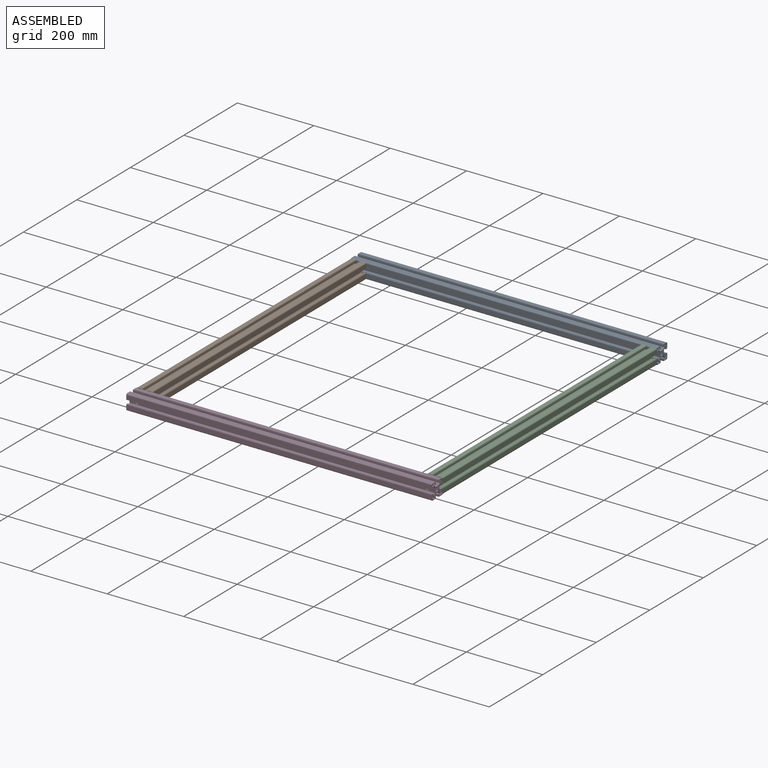
[diagram: assembled view]
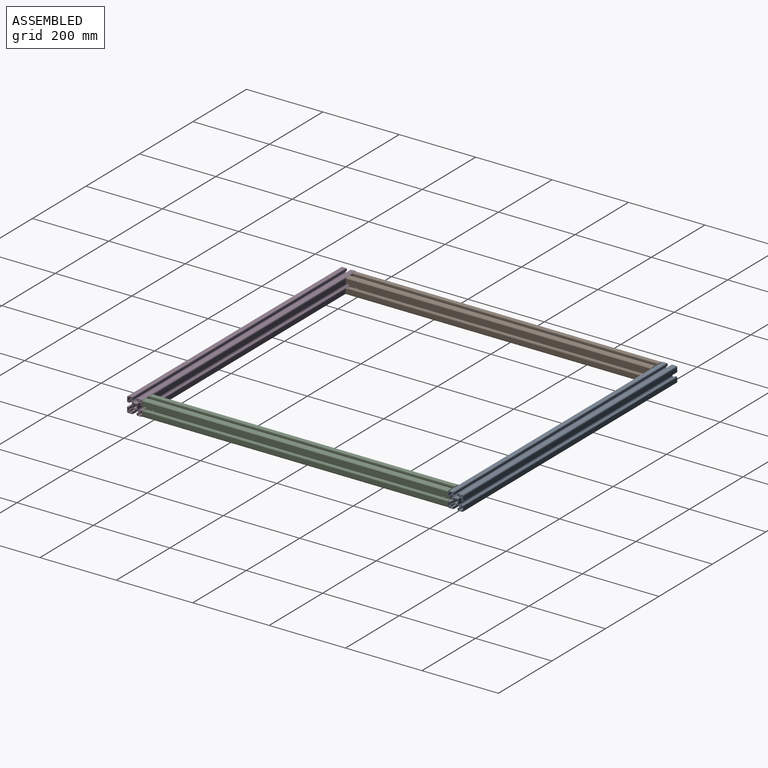
[diagram: assembled view, second angle]
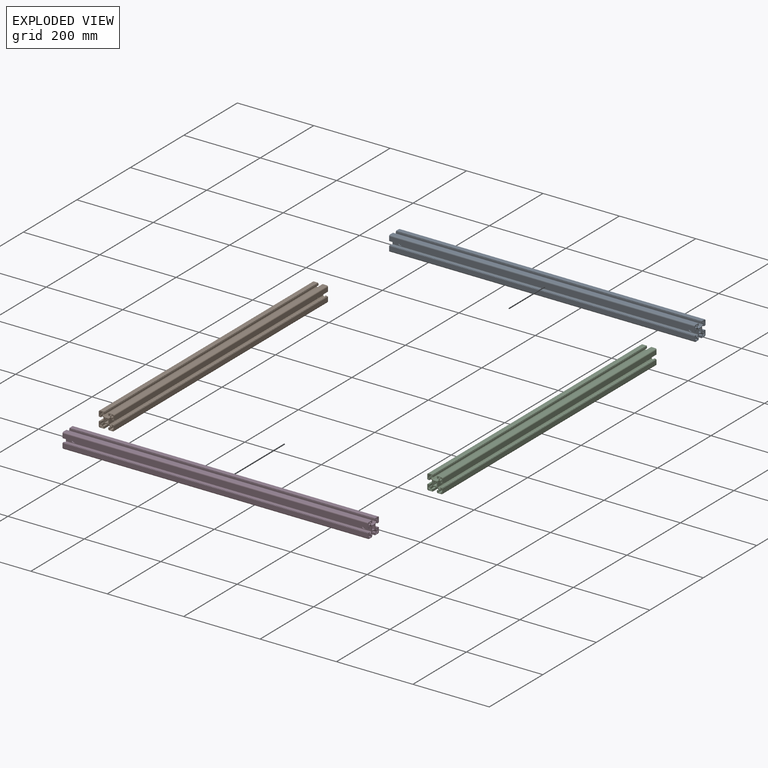
[diagram: exploded view]
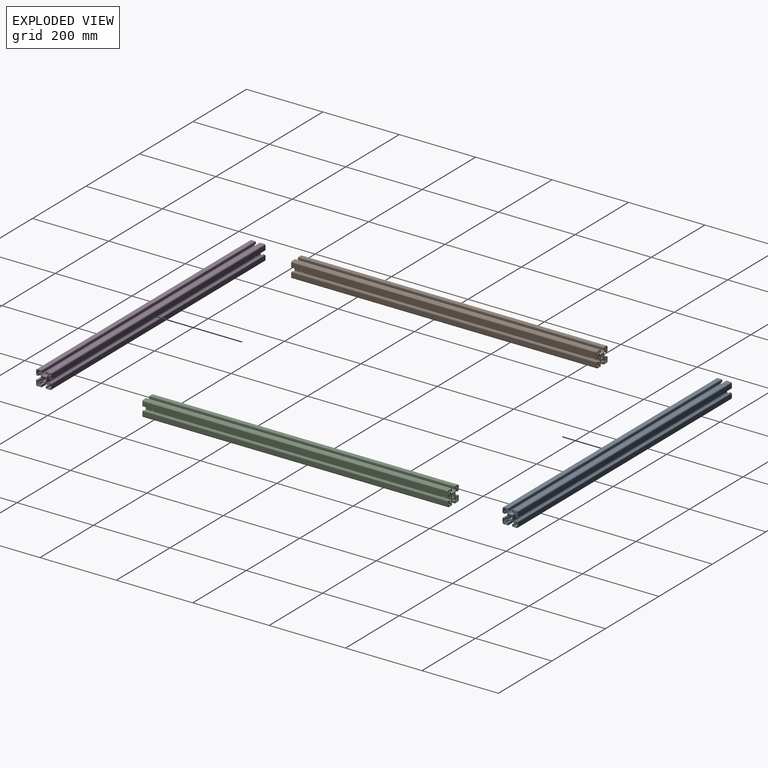
[diagram: exploded view, second angle]
ASSEMBLY  parts=4 mates=3
PART A: 166 faces, bbox 800x40x40 mm
  f0: cylinder r=5mm len=750.83mm, axis (-1,0,0), area 3077.3mm2, adj f7,f8,f162,f163
  f1: cylinder r=5mm len=15.41mm, axis (-1,0,0), area 62.1mm2, adj f6,f77,f156,f163
  f2: cylinder r=5mm len=15.41mm, axis (-1,0,0), area 62.1mm2, adj f9,f76,f157,f162
  f3: cylinder r=5mm len=750.83mm, axis (-1,0,0), area 3077.3mm2, adj f10,f13,f164,f165
  f4: cylinder r=5mm len=15.41mm, axis (-1,0,0), area 62.1mm2, adj f12,f84,f156,f165
  f5: cylinder r=5mm len=15.41mm, axis (-1,0,0), area 62.1mm2, adj f11,f85,f157,f164
  f6: plane 15.54x0.62mm, normal (0,-0.92,-0.4), area 10.4mm2, adj f1,f91,f156,f163
  f7: plane 751.09x0.62mm, normal (0,-0.92,-0.4), area 503.4mm2, adj f0,f91,f162,f163
  f8: plane 751.09x0.62mm, normal (0,0.92,-0.4), area 503.4mm2, adj f0,f78,f162,f163
  f9: plane 15.54x0.62mm, normal (0,0.92,-0.4), area 10.4mm2, adj f2,f78,f157,f162
  f10: plane 751.09x0.62mm, normal (0,0.92,0.4), area 503.4mm2, adj f3,f83,f164,f165
  f11: plane 15.54x0.62mm, normal (0,0.92,0.4), area 10.4mm2, adj f5,f83,f157,f164
  f12: plane 15.54x0.62mm, normal (0,-0.92,0.4), area 10.4mm2, adj f4,f86,f156,f165
  f13: plane 751.09x0.62mm, normal (0,-0.92,0.4), area 503.4mm2, adj f3,f86,f164,f165
  f14: plane 15.54x0.62mm, normal (0,-0.4,0.92), area 10.4mm2, adj f17,f79,f156,f161
  f15: plane 751.09x0.62mm, normal (0,-0.4,0.92), area 503.4mm2, adj f16,f79,f160,f161
  f16: cylinder r=5mm len=750.83mm, axis (-1,0,0), area 3077.3mm2, adj f15,f19,f160,f161
  f17: cylinder r=5mm len=15.41mm, axis (-1,0,0), area 62.1mm2, adj f14,f81,f156,f161
  f18: cylinder r=5mm len=15.41mm, axis (-1,0,0), area 62.1mm2, adj f20,f80,f157,f160
  f19: plane 751.09x0.62mm, normal (0,-0.4,-0.92), area 503.4mm2, adj f16,f82,f160,f161
  f20: plane 15.54x0.62mm, normal (0,-0.4,-0.92), area 10.4mm2, adj f18,f82,f157,f160
  f21: plane 751.09x0.62mm, normal (0,0.4,-0.92), area 503.4mm2, adj f24,f87,f158,f159
  f22: plane 15.54x0.62mm, normal (0,0.4,-0.92), area 10.4mm2, adj f25,f87,f157,f158
  f23: cylinder r=5mm len=15.41mm, axis (-1,0,0), area 62.1mm2, adj f26,f88,f156,f159
  f24: cylinder r=5mm len=750.83mm, axis (-1,0,0), area 3077.3mm2, adj f21,f27,f158,f159
  f25: cylinder r=5mm len=15.41mm, axis (-1,0,0), area 62.1mm2, adj f22,f89,f157,f158
  f26: plane 15.54x0.62mm, normal (0,0.4,0.92), area 10.4mm2, adj f23,f90,f156,f159
  f27: plane 751.09x0.62mm, normal (0,0.4,0.92), area 503.4mm2, adj f24,f90,f158,f159
  f28: plane 800x6.5mm, normal (0,0,1), area 5200mm2, adj f29,f39,f156,f157
  f29: plane 800x1.25mm, normal (0,1,0), area 1000mm2, adj f28,f30,f156,f157
  f30: cylinder r=2.75mm len=800mm, axis (-1,0,0), area 3455.8mm2, adj f29,f31,f156,f157
  f31: plane 800x1.25mm, normal (0,0,1), area 1000mm2, adj f30,f32,f156,f157
  f32: plane 800x6.5mm, normal (0,1,0), area 5200mm2, adj f31,f33,f156,f157
  f33: plane 800x3mm, normal (0,0,-1), area 2400mm2, adj f32,f34,f156,f157
  f34: plane 800x3.75mm, normal (0,-1,0), area 3000mm2, adj f33,f35,f156,f157
  f35: plane 800x1mm, normal (0,0,-1), area 800mm2, adj f34,f36,f156,f157
  f36: cylinder r=2.75mm len=800mm, axis (-1,0,0), area 3455.8mm2, adj f35,f37,f156,f157
  f37: plane 800x1mm, normal (0,-1,0), area 800mm2, adj f36,f38,f156,f157
  f38: plane 800x3.75mm, normal (0,0,-1), area 3000mm2, adj f37,f39,f156,f157
  f39: plane 800x3mm, normal (0,-1,0), area 2400mm2, adj f28,f38,f156,f157
  f40: plane 800x6.5mm, normal (0,1,0), area 5200mm2, adj f41,f51,f156,f157
  f41: plane 800x1.25mm, normal (0,0,-1), area 1000mm2, adj f40,f42,f156,f157
  f42: cylinder r=2.75mm len=800mm, axis (-1,0,0), area 3455.8mm2, adj f41,f43,f156,f157
  f43: plane 800x1.25mm, normal (0,1,0), area 1000mm2, adj f42,f44,f156,f157
  f44: plane 800x6.5mm, normal (0,0,-1), area 5200mm2, adj f43,f45,f156,f157
  f45: plane 800x3mm, normal (0,-1,0), area 2400mm2, adj f44,f46,f156,f157
  f46: plane 800x3.75mm, normal (0,0,1), area 3000mm2, adj f45,f47,f156,f157
  f47: plane 800x1mm, normal (0,-1,0), area 800mm2, adj f46,f48,f156,f157
  f48: cylinder r=2.75mm len=800mm, axis (-1,0,0), area 3455.8mm2, adj f47,f49,f156,f157
  f49: plane 800x1mm, normal (0,0,1), area 800mm2, adj f48,f50,f156,f157
  f50: plane 800x3.75mm, normal (0,-1,0), area 3000mm2, adj f49,f51,f156,f157
  f51: plane 800x3mm, normal (0,0,1), area 2400mm2, adj f40,f50,f156,f157
  f52: plane 800x6.5mm, normal (0,0,-1), area 5200mm2, adj f53,f63,f156,f157
  f53: plane 800x1.25mm, normal (0,-1,0), area 1000mm2, adj f52,f54,f156,f157
  f54: cylinder r=2.75mm len=800mm, axis (-1,0,0), area 3455.8mm2, adj f53,f55,f156,f157
  f55: plane 800x1.25mm, normal (0,0,-1), area 1000mm2, adj f54,f56,f156,f157
  f56: plane 800x6.5mm, normal (0,-1,0), area 5200mm2, adj f55,f57,f156,f157
  f57: plane 800x3mm, normal (0,0,1), area 2400mm2, adj f56,f58,f156,f157
  f58: plane 800x3.75mm, normal (0,1,0), area 3000mm2, adj f57,f59,f156,f157
  f59: plane 800x1mm, normal (0,0,1), area 800mm2, adj f58,f60,f156,f157
  f60: cylinder r=2.75mm len=800mm, axis (-1,0,0), area 3455.8mm2, adj f59,f61,f156,f157
  f61: plane 800x1mm, normal (0,1,0), area 800mm2, adj f60,f62,f156,f157
  f62: plane 800x3.75mm, normal (0,0,1), area 3000mm2, adj f61,f63,f156,f157
  f63: plane 800x3mm, normal (0,1,0), area 2400mm2, adj f52,f62,f156,f157
  f64: plane 800x6.5mm, normal (0,-1,0), area 5200mm2, adj f65,f75,f156,f157
  f65: plane 800x1.25mm, normal (0,0,1), area 1000mm2, adj f64,f66,f156,f157
  f66: cylinder r=2.75mm len=800mm, axis (-1,0,0), area 3455.8mm2, adj f65,f67,f156,f157
  f67: plane 800x1.25mm, normal (0,-1,0), area 1000mm2, adj f66,f68,f156,f157
  f68: plane 800x6.5mm, normal (0,0,1), area 5200mm2, adj f67,f69,f156,f157
  f69: plane 800x3mm, normal (0,1,0), area 2400mm2, adj f68,f70,f156,f157
  f70: plane 800x3.75mm, normal (0,0,-1), area 3000mm2, adj f69,f71,f156,f157
  f71: plane 800x1mm, normal (0,1,0), area 800mm2, adj f70,f72,f156,f157
  f72: cylinder r=2.75mm len=800mm, axis (-1,0,0), area 3455.8mm2, adj f71,f73,f156,f157
  f73: plane 800x1mm, normal (0,0,-1), area 800mm2, adj f72,f74,f156,f157
  f74: plane 800x3.75mm, normal (0,1,0), area 3000mm2, adj f73,f75,f156,f157
  f75: plane 800x3mm, normal (0,0,-1), area 2400mm2, adj f64,f74,f156,f157
  f76: plane 15.54x0.62mm, normal (0,-0.92,-0.4), area 10.4mm2, adj f2,f91,f157,f162
  f77: plane 15.54x0.62mm, normal (0,0.92,-0.4), area 10.4mm2, adj f1,f78,f156,f163
  f78: plane 800x2.94mm, normal (0,0,-1), area 2316.3mm2, adj f8,f9,f77,f79,f156,f157,f162,f163
  f79: plane 800x2.94mm, normal (0,-1,0), area 2316.3mm2, adj f14,f15,f78,f80,f156,f157,f160,f161
  f80: plane 15.54x0.62mm, normal (0,-0.4,0.92), area 10.4mm2, adj f18,f79,f157,f160
  f81: plane 15.54x0.62mm, normal (0,-0.4,-0.92), area 10.4mm2, adj f17,f82,f156,f161
  f82: plane 800x2.94mm, normal (0,-1,0), area 2316.3mm2, adj f19,f20,f81,f83,f156,f157,f160,f161
  f83: plane 800x2.94mm, normal (0,0,1), area 2316.3mm2, adj f10,f11,f82,f84,f156,f157,f164,f165
  f84: plane 15.54x0.62mm, normal (0,0.92,0.4), area 10.4mm2, adj f4,f83,f156,f165
  f85: plane 15.54x0.62mm, normal (0,-0.92,0.4), area 10.4mm2, adj f5,f86,f157,f164
  f86: plane 800x2.94mm, normal (0,0,1), area 2316.3mm2, adj f12,f13,f85,f87,f156,f157,f164,f165
  f87: plane 800x2.94mm, normal (0,1,0), area 2316.3mm2, adj f21,f22,f86,f88,f156,f157,f158,f159
  f88: plane 15.54x0.62mm, normal (0,0.4,-0.92), area 10.4mm2, adj f23,f87,f156,f159
  f89: plane 15.54x0.62mm, normal (0,0.4,0.92), area 10.4mm2, adj f25,f90,f157,f158
  f90: plane 800x2.94mm, normal (0,1,0), area 2316.3mm2, adj f26,f27,f89,f91,f156,f157,f158,f159
  f91: plane 800x2.94mm, normal (0,0,-1), area 2316.3mm2, adj f6,f7,f76,f90,f156,f157,f162,f163
  f92: plane 800x3.96mm, normal (0,0.71,-0.71), area 4485mm2, adj f93,f155,f156,f157
  f93: plane 800x12.17mm, normal (0,1,0), area 9580.2mm2, adj f92,f94,f156,f157,f160,f161
  f94: plane 800x3.96mm, normal (0,0.71,0.71), area 4485mm2, adj f93,f95,f156,f157
  f95: plane 800x2.54mm, normal (0,0,1), area 2028.6mm2, adj f94,f96,f156,f157
  f96: plane 800x5.05mm, normal (0,-1,0), area 4040mm2, adj f95,f97,f156,f157
  f97: plane 800x4.5mm, normal (0,0,1), area 3600mm2, adj f96,f98,f156,f157
  f98: plane 800x0.8mm, normal (0,1,0), area 640mm2, adj f97,f99,f156,f157
  f99: plane 800x1.5mm, normal (0,0,1), area 1200mm2, adj f98,f100,f156,f157
  f100: plane 800x11.2mm, normal (0,1,0), area 8960mm2, adj f99,f101,f156,f157
  f101: cylinder r=3mm len=800mm, axis (-1,0,0), area 3769.9mm2, adj f100,f102,f156,f157
  f102: plane 800x11.2mm, normal (0,0,-1), area 8960mm2, adj f101,f103,f156,f157
  f103: plane 800x1.5mm, normal (0,-1,0), area 1200mm2, adj f102,f104,f156,f157
  f104: plane 800x0.8mm, normal (0,0,-1), area 640mm2, adj f103,f105,f156,f157
  f105: plane 800x4.5mm, normal (0,-1,0), area 3600mm2, adj f104,f106,f156,f157
  f106: plane 800x5.05mm, normal (0,0,1), area 4040mm2, adj f105,f107,f156,f157
  f107: plane 800x2.54mm, normal (0,-1,0), area 2028.6mm2, adj f106,f108,f156,f157
  f108: plane 800x3.96mm, normal (0,-0.71,-0.71), area 4485mm2, adj f107,f109,f156,f157
  f109: plane 800x12.17mm, normal (0,0,-1), area 9580.2mm2, adj f108,f110,f156,f157,f164,f165
  f110: plane 800x3.96mm, normal (0,0.71,-0.71), area 4485mm2, adj f109,f111,f156,f157
  f111: plane 800x2.54mm, normal (0,1,0), area 2028.6mm2, adj f110,f112,f156,f157
  f112: plane 800x5.05mm, normal (0,0,1), area 4040mm2, adj f111,f113,f156,f157
  f113: plane 800x4.5mm, normal (0,1,0), area 3600mm2, adj f112,f114,f156,f157
  f114: plane 800x0.8mm, normal (0,0,-1), area 640mm2, adj f113,f115,f156,f157
  f115: plane 800x1.5mm, normal (0,1,0), area 1200mm2, adj f114,f116,f156,f157
  f116: plane 800x11.2mm, normal (0,0,-1), area 8960mm2, adj f115,f117,f156,f157
  f117: cylinder r=3mm len=800mm, axis (-1,0,0), area 3769.9mm2, adj f116,f118,f156,f157
  f118: plane 800x11.2mm, normal (0,-1,0), area 8960mm2, adj f117,f119,f156,f157
  f119: plane 800x1.5mm, normal (0,0,1), area 1200mm2, adj f118,f120,f156,f157
  f120: plane 800x0.8mm, normal (0,-1,0), area 640mm2, adj f119,f121,f156,f157
  f121: plane 800x4.5mm, normal (0,0,1), area 3600mm2, adj f120,f122,f156,f157
  f122: plane 800x5.05mm, normal (0,1,0), area 4040mm2, adj f121,f123,f156,f157
  f123: plane 800x2.54mm, normal (0,0,1), area 2028.6mm2, adj f122,f124,f156,f157
  f124: plane 800x3.96mm, normal (0,-0.71,0.71), area 4485mm2, adj f123,f125,f156,f157
  f125: plane 800x12.17mm, normal (0,-1,0), area 9580.2mm2, adj f124,f126,f156,f157,f158,f159
  f126: plane 800x3.96mm, normal (0,-0.71,-0.71), area 4485mm2, adj f125,f127,f156,f157
  f127: plane 800x2.54mm, normal (0,0,-1), area 2028.6mm2, adj f126,f128,f156,f157
  f128: plane 800x5.05mm, normal (0,1,0), area 4040mm2, adj f127,f129,f156,f157
  f129: plane 800x4.5mm, normal (0,0,-1), area 3600mm2, adj f128,f130,f156,f157
  f130: plane 800x0.8mm, normal (0,-1,0), area 640mm2, adj f129,f131,f156,f157
  f131: plane 800x1.5mm, normal (0,0,-1), area 1200mm2, adj f130,f132,f156,f157
  f132: plane 800x11.2mm, normal (0,-1,0), area 8960mm2, adj f131,f133,f156,f157
  f133: cylinder r=3mm len=800mm, axis (-1,0,0), area 3769.9mm2, adj f132,f134,f156,f157
  f134: plane 800x11.2mm, normal (0,0,1), area 8960mm2, adj f133,f135,f156,f157
  f135: plane 800x1.5mm, normal (0,1,0), area 1200mm2, adj f134,f136,f156,f157
  f136: plane 800x0.8mm, normal (0,0,1), area 640mm2, adj f135,f137,f156,f157
  f137: plane 800x4.5mm, normal (0,1,0), area 3600mm2, adj f136,f138,f156,f157
  f138: plane 800x5.05mm, normal (0,0,-1), area 4040mm2, adj f137,f139,f156,f157
  f139: plane 800x2.54mm, normal (0,1,0), area 2028.6mm2, adj f138,f140,f156,f157
  f140: plane 800x3.96mm, normal (0,0.71,0.71), area 4485mm2, adj f139,f141,f156,f157
  f141: plane 800x12.17mm, normal (0,0,1), area 9580.2mm2, adj f140,f142,f156,f157,f162,f163
  f142: plane 800x3.96mm, normal (0,-0.71,0.71), area 4485mm2, adj f141,f143,f156,f157
  f143: plane 800x2.54mm, normal (0,-1,0), area 2028.6mm2, adj f142,f144,f156,f157
  f144: plane 800x5.05mm, normal (0,0,-1), area 4040mm2, adj f143,f145,f156,f157
  f145: plane 800x4.5mm, normal (0,-1,0), area 3600mm2, adj f144,f146,f156,f157
  f146: plane 800x0.8mm, normal (0,0,1), area 640mm2, adj f145,f147,f156,f157
  f147: plane 800x1.5mm, normal (0,-1,0), area 1200mm2, adj f146,f148,f156,f157
  f148: plane 800x11.2mm, normal (0,0,1), area 8960mm2, adj f147,f149,f156,f157
  f149: cylinder r=3mm len=800mm, axis (-1,0,0), area 3769.9mm2, adj f148,f150,f156,f157
  f150: plane 800x11.2mm, normal (0,1,0), area 8960mm2, adj f149,f151,f156,f157
  f151: plane 800x1.5mm, normal (0,0,-1), area 1200mm2, adj f150,f152,f156,f157
  f152: plane 800x0.8mm, normal (0,1,0), area 640mm2, adj f151,f153,f156,f157
  f153: plane 800x4.5mm, normal (0,0,-1), area 3600mm2, adj f152,f154,f156,f157
  f154: plane 800x5.05mm, normal (0,-1,0), area 4040mm2, adj f153,f155,f156,f157
  f155: plane 800x2.54mm, normal (0,0,-1), area 2028.6mm2, adj f92,f154,f156,f157
  f156: plane 40x40mm, normal (-1,0,0), area 555.3mm2, adj f1,f4,f6,f12,f14,f17,f23,f26
  f157: plane 40x40mm, normal (1,0,0), area 555.3mm2, adj f2,f5,f9,f11,f18,f20,f22,f25
  f158: cylinder r=5mm len=10mm, axis (0,1,0), area 75.4mm2, adj f21,f22,f24,f25,f27,f87,f89,f90
  f159: cylinder r=5mm len=10mm, axis (0,1,0), area 75.4mm2, adj f21,f23,f24,f26,f27,f87,f88,f90
  f160: cylinder r=5mm len=10mm, axis (0,1,0), area 75.4mm2, adj f15,f16,f18,f19,f20,f79,f80,f82
  f161: cylinder r=5mm len=10mm, axis (0,1,0), area 75.4mm2, adj f14,f15,f16,f17,f19,f79,f81,f82
  f162: cylinder r=5mm len=10mm, axis (0,0,1), area 75.4mm2, adj f0,f2,f7,f8,f9,f76,f78,f91
  f163: cylinder r=5mm len=10mm, axis (0,0,1), area 75.4mm2, adj f0,f1,f6,f7,f8,f77,f78,f91
  f164: cylinder r=5mm len=10mm, axis (0,0,1), area 75.4mm2, adj f3,f5,f10,f11,f13,f83,f85,f86
  f165: cylinder r=5mm len=10mm, axis (0,0,1), area 75.4mm2, adj f3,f4,f10,f12,f13,f83,f84,f86
PART B: same geometry as A
PART C: same geometry as A
PART D: same geometry as A
PLACE A t=(122.06,413.47,168.09)mm fixed
PLACE B rot(axis=(-0.58,-0.58,0.58),120deg) t=(142.06,-406.53,168.09)mm
PLACE C rot(axis=(-0.58,-0.58,0.58),120deg) t=(902.06,-406.53,168.09)mm
PLACE D rot(axis=(1,0,0),180deg) t=(122.06,-426.53,168.09)mm
MATE fastened C.f23 <-> A.f158  axis (0,1,0) through (902.06,393.47,168.09)mm
MATE fastened B.f23 <-> A.f159  axis (0,1,0) through (142.06,393.47,168.09)mm
MATE fastened D.f158 <-> C.f0  axis (0,1,0) through (902.06,-419.03,168.09)mm
